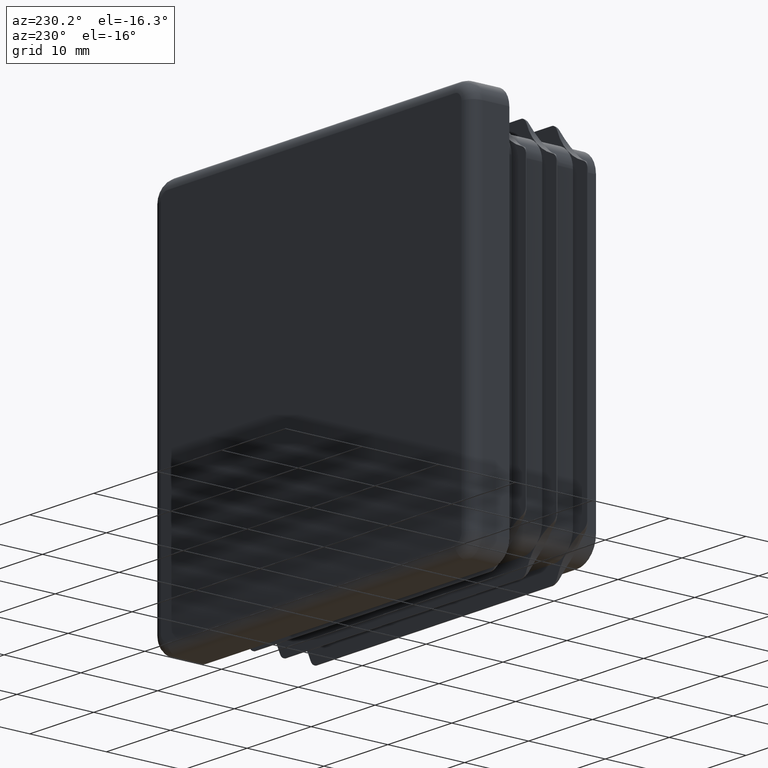
[diagram: clean part render]
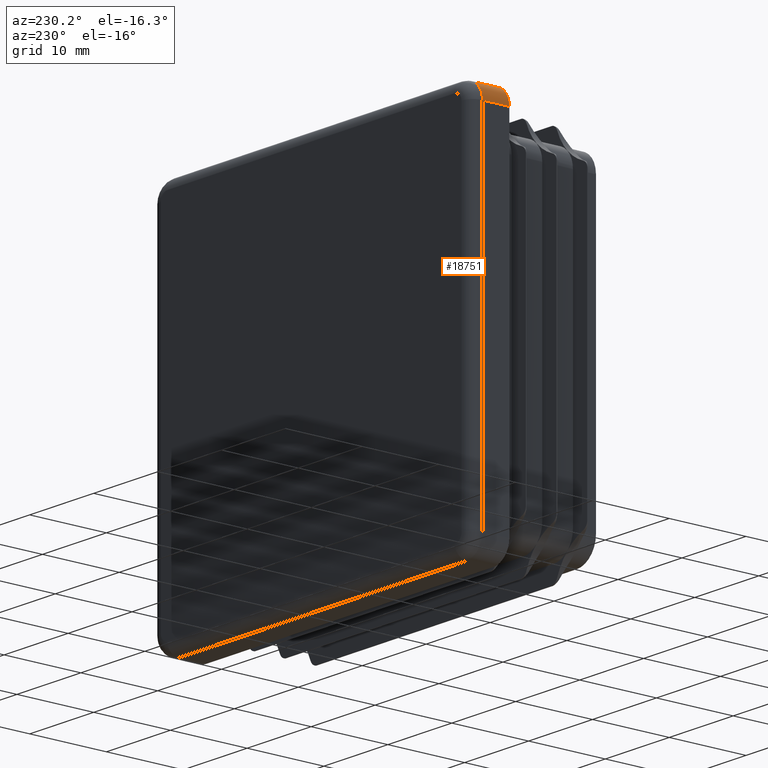
[diagram: same view with one face highlighted and labeled with its STEP entity id]
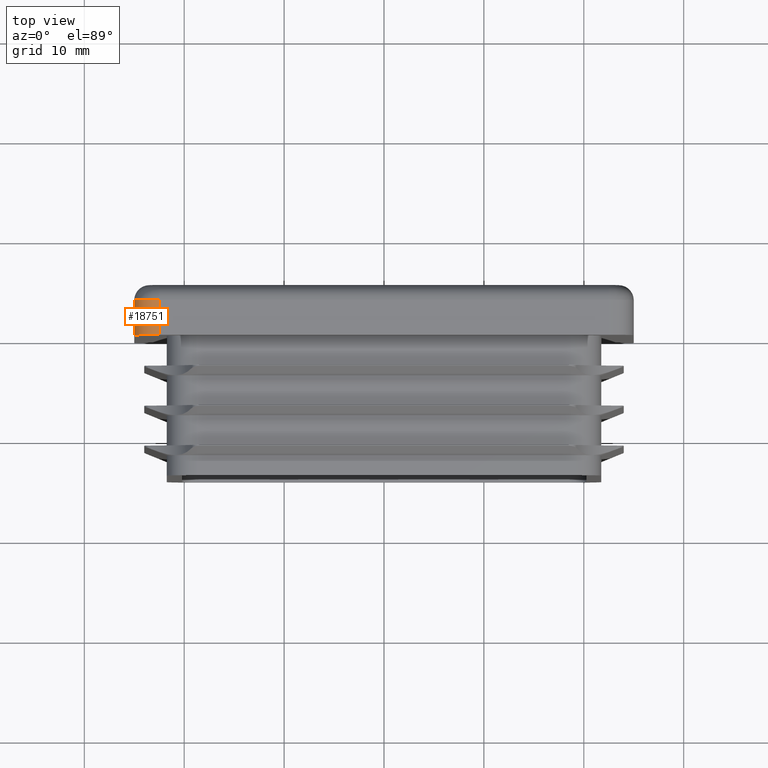
[diagram: same view with one face highlighted and labeled with its STEP entity id]
A machine part, auxiliary view. The second image highlights one B-rep face of the part: STEP entity #18751.
A second angle (top view) of the same face is appended — the face is thin or edge-on in the first view.
In plain terms, the highlighted cylindrical surface (edge-blend (fillet) strip) has radius 2.5 mm, axis along (0, -1, 0).
Its self-contained STEP definition (entity closure, byte-faithful):
#341 = EDGE_CURVE ( 'NONE', #2417, #14035, #3325, .T. ) ;
#357 = ORIENTED_EDGE ( 'NONE', *, *, #341, .T. ) ;
#1326 = LINE ( 'NONE', #6417, #19062 ) ;
#1436 = AXIS2_PLACEMENT_3D ( 'NONE', #3975, #2213, #10414 ) ;
#2213 = DIRECTION ( 'NONE',  ( 0.000000000000000000, -1.000000000000000000, 0.000000000000000000 ) ) ;
#2417 = VERTEX_POINT ( 'NONE', #9178 ) ;
#2637 = EDGE_CURVE ( 'NONE', #2417, #20360, #9446, .T. ) ;
#3108 = CARTESIAN_POINT ( 'NONE',  ( -22.49999999999999645, 0.000000000000000000, 22.50000000000000355 ) ) ;
#3325 = CIRCLE ( 'NONE', #3804, 2.499999999999998668 ) ;
#3804 = AXIS2_PLACEMENT_3D ( 'NONE', #21493, #6486, #17973 ) ;
#3975 = CARTESIAN_POINT ( 'NONE',  ( -22.49999999999999645, 5.000000000000000000, 22.50000000000000355 ) ) ;
#4578 = EDGE_CURVE ( 'NONE', #21217, #14035, #1326, .T. ) ;
#5109 = CARTESIAN_POINT ( 'NONE',  ( -24.99999999999999289, 3.500000000000000000, 22.50000000000000000 ) ) ;
#5597 = AXIS2_PLACEMENT_3D ( 'NONE', #3108, #13290, #14974 ) ;
#5860 = CARTESIAN_POINT ( 'NONE',  ( -24.99999999999999289, 0.000000000000000000, 22.50000000000000000 ) ) ;
#6315 = CIRCLE ( 'NONE', #5597, 2.499999999999998668 ) ;
#6417 = CARTESIAN_POINT ( 'NONE',  ( -24.99999999999999289, 5.000000000000000000, 22.50000000000000000 ) ) ;
#6486 = DIRECTION ( 'NONE',  ( -0.000000000000000000, -1.000000000000000000, -0.000000000000000000 ) ) ;
#6930 = DIRECTION ( 'NONE',  ( 0.000000000000000000, -1.000000000000000000, 0.000000000000000000 ) ) ;
#7033 = FACE_OUTER_BOUND ( 'NONE', #10538, .T. ) ;
#9178 = CARTESIAN_POINT ( 'NONE',  ( -22.49999999999999645, 3.500000000000000000, 25.00000000000000000 ) ) ;
#9446 = LINE ( 'NONE', #17035, #10611 ) ;
#9589 = ORIENTED_EDGE ( 'NONE', *, *, #2637, .F. ) ;
#10414 = DIRECTION ( 'NONE',  ( 0.000000000000000000, 0.000000000000000000, -1.000000000000000000 ) ) ;
#10538 = EDGE_LOOP ( 'NONE', ( #9589, #357, #11678, #13263 ) ) ;
#10611 = VECTOR ( 'NONE', #6930, 1000.000000000000000 ) ;
#11678 = ORIENTED_EDGE ( 'NONE', *, *, #4578, .F. ) ;
#13263 = ORIENTED_EDGE ( 'NONE', *, *, #15251, .F. ) ;
#13290 = DIRECTION ( 'NONE',  ( -0.000000000000000000, -1.000000000000000000, -0.000000000000000000 ) ) ;
#13765 = CYLINDRICAL_SURFACE ( 'NONE', #1436, 2.499999999999998668 ) ;
#14035 = VERTEX_POINT ( 'NONE', #5109 ) ;
#14974 = DIRECTION ( 'NONE',  ( 0.000000000000000000, 0.000000000000000000, 1.000000000000000000 ) ) ;
#15251 = EDGE_CURVE ( 'NONE', #20360, #21217, #6315, .T. ) ;
#17035 = CARTESIAN_POINT ( 'NONE',  ( -22.49999999999999645, 5.000000000000000000, 25.00000000000000000 ) ) ;
#17912 = DIRECTION ( 'NONE',  ( -0.000000000000000000, 1.000000000000000000, -0.000000000000000000 ) ) ;
#17973 = DIRECTION ( 'NONE',  ( 0.000000000000000000, 0.000000000000000000, 1.000000000000000000 ) ) ;
#18751 = ADVANCED_FACE ( 'NONE', ( #7033 ), #13765, .T. ) ;
#19062 = VECTOR ( 'NONE', #17912, 1000.000000000000000 ) ;
#19100 = CARTESIAN_POINT ( 'NONE',  ( -22.49999999999999645, 0.000000000000000000, 25.00000000000000000 ) ) ;
#20360 = VERTEX_POINT ( 'NONE', #19100 ) ;
#21217 = VERTEX_POINT ( 'NONE', #5860 ) ;
#21493 = CARTESIAN_POINT ( 'NONE',  ( -22.49999999999999645, 3.500000000000000000, 22.50000000000000355 ) ) ;